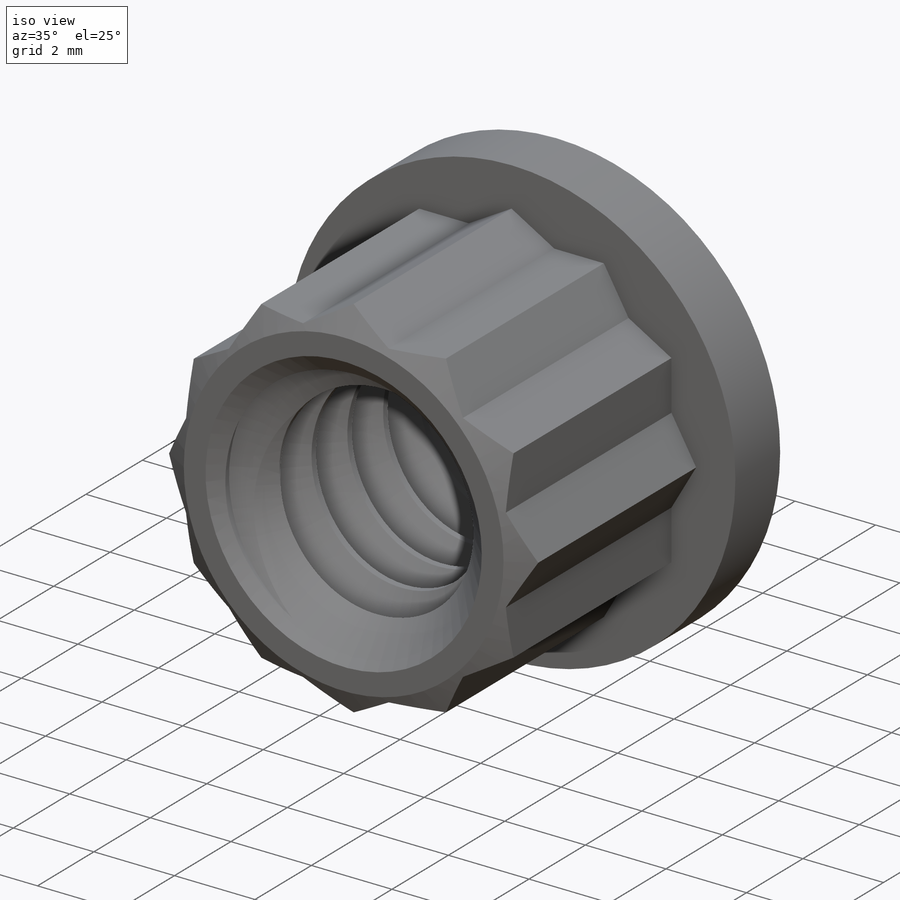
[diagram: iso view]
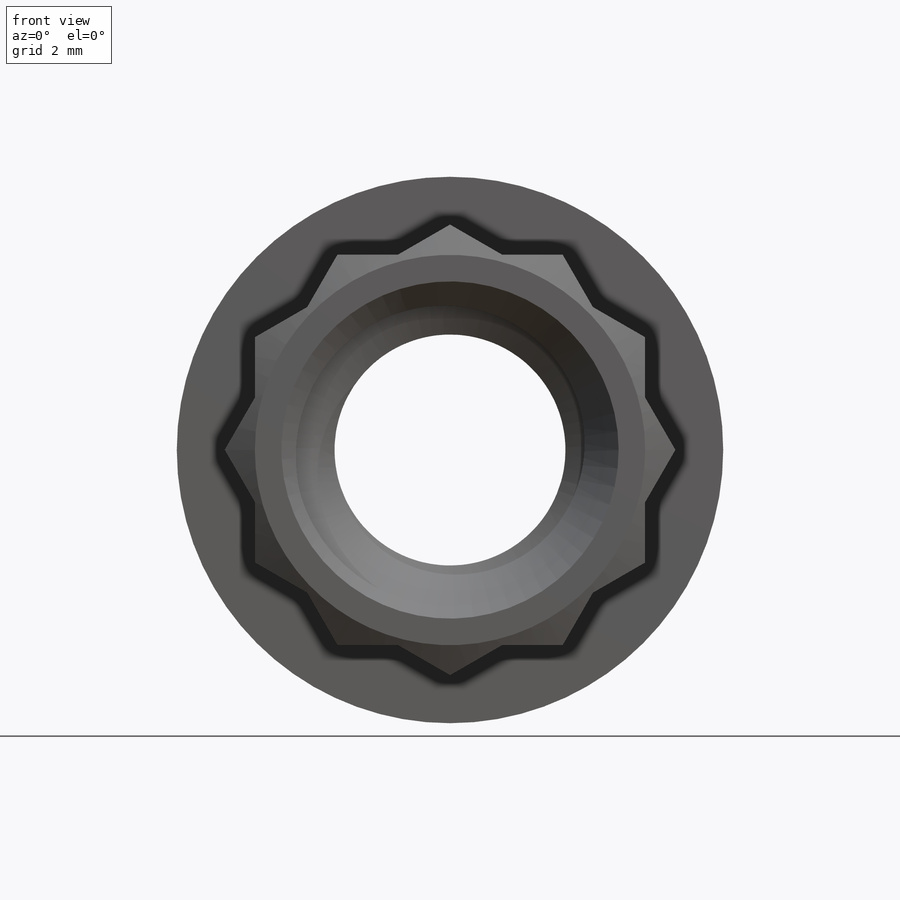
[diagram: front view]
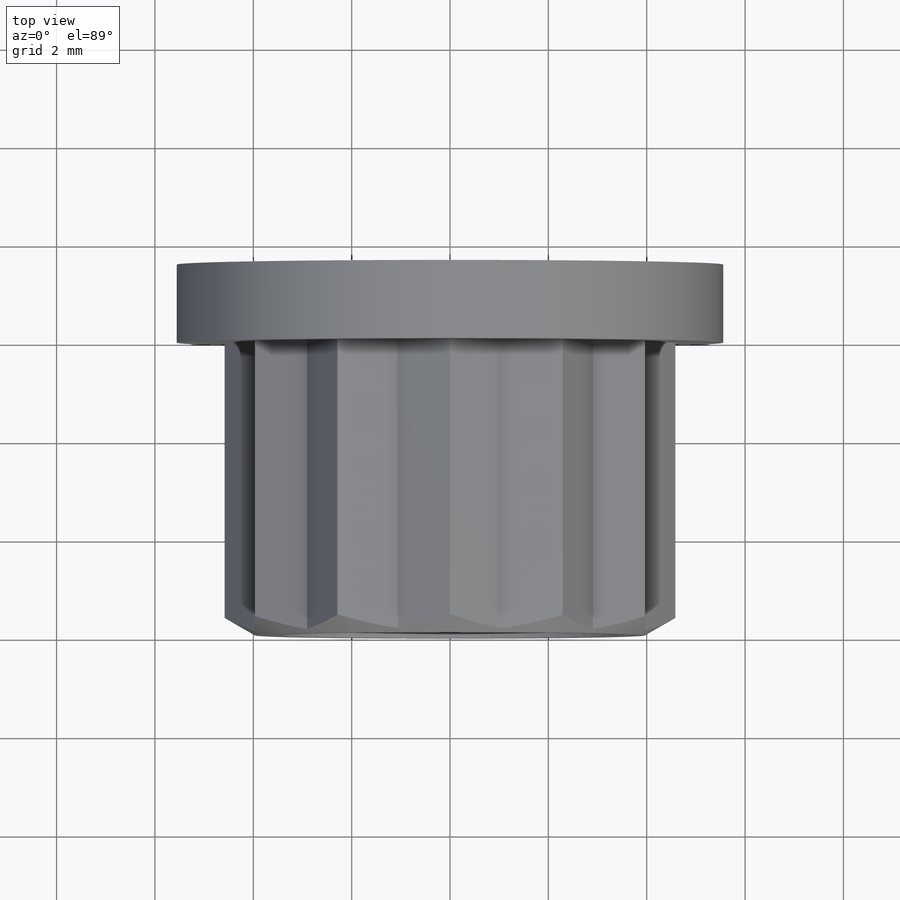
[diagram: top view]
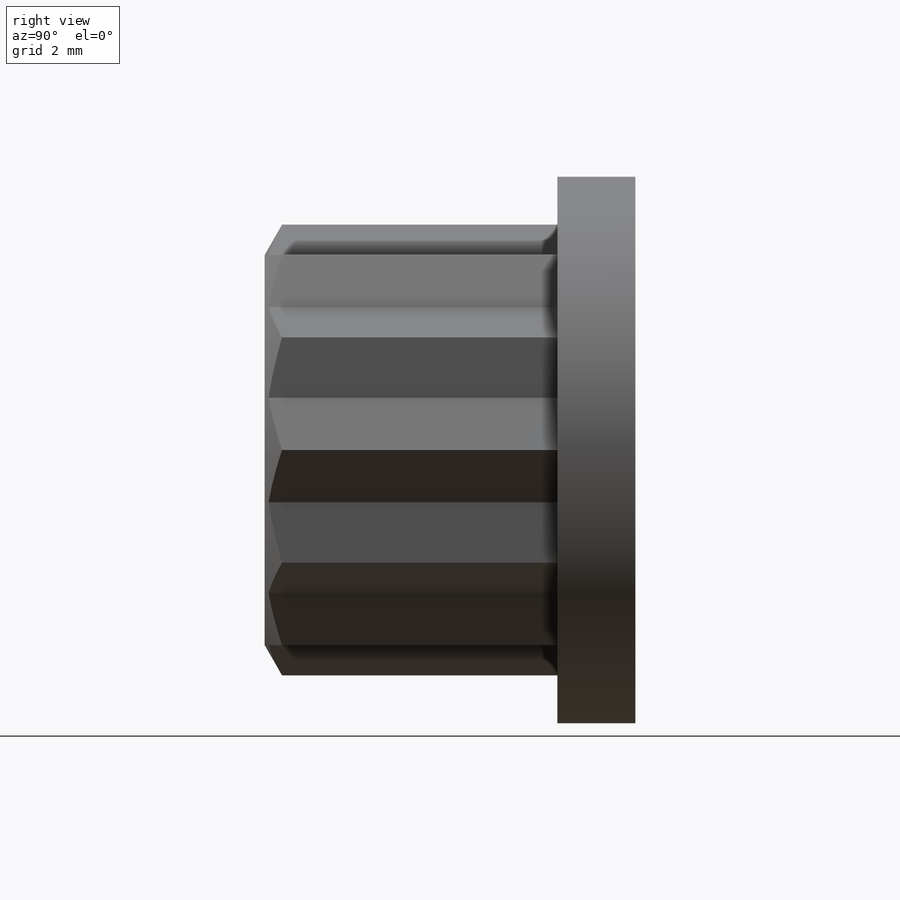
[diagram: right view]
SOLIDWORKS PART (.sldprt)
format: sldprt  version: not decoded by parser v0  size: 667,136 bytes
history: native  units: mm
features: sketch x10, extrude x4, cut_extrude x4, material x1, helix x1, sweep x1 (+14 scaffold rows collapsed)
feature tree (35):
  scaffold x14  (default folders/planes/origin — collapsed)
  material  "Plain Carbon Steel"
  sketch  "Sketch1"  dims[Hex=7.9375mm]
  extrude  "Extrude1"  Depth=7.540625mm Height=7.540625mm
  sketch  "Sketch14"
  extrude  "Extrude4"  [1 undecoded]
  sketch  "Sketch13"  dims[Flange od=11.1125mm]
  extrude  "Extrude3"  Depth=1.5875mm flange thickness=1.5875mm
  sketch  "Sketch2"
  cut_extrude  "Cut-Extrude1"  [1 undecoded]
  sketch  "Sketch4"  dims[Thread Dia=6.35mm]
  cut_extrude  "Cut-Extrude3"  [1 undecoded]
  sketch  "Sketch7"  dims[D1=0.254mm]
  sketch  "Sketch8"
  sketch  "Sketch5"
  helix  "Helix/Spiral1"  Pitch=8.810625mm pitch=1.27mm
  sketch  "Sketch9"  dims[c1.D1=~2.869972mm c2.D1=60.0deg c2.D2=~0.198437mm c2.D3=1.5875mm c2.D4=4.7625mm c3.D1=~0.15875mm c3.D2=0.635mm c3.D3=~4.457664mm c4.D3=0.0625deg c5.D3=~4.457664mm c6.D3=60.0deg]
  sketch  "Sketch12"
  extrude  "Extrude2"  [1 undecoded]
  sweep  "Cut-Sweep1"
  cut_extrude  "Cut-Extrude6"  [1 undecoded]
  cut_extrude  "Cut-Extrude7"  [1 undecoded]
decode coverage: 8 of 20 modeling features carry decoded parameters
note: ~ marks probable driven/reference dimensions
note: 6 parameter values undecoded
summary: no parameter record found for 6 features
note: suppression state not decoded; provenance and decode notes live in map.json
